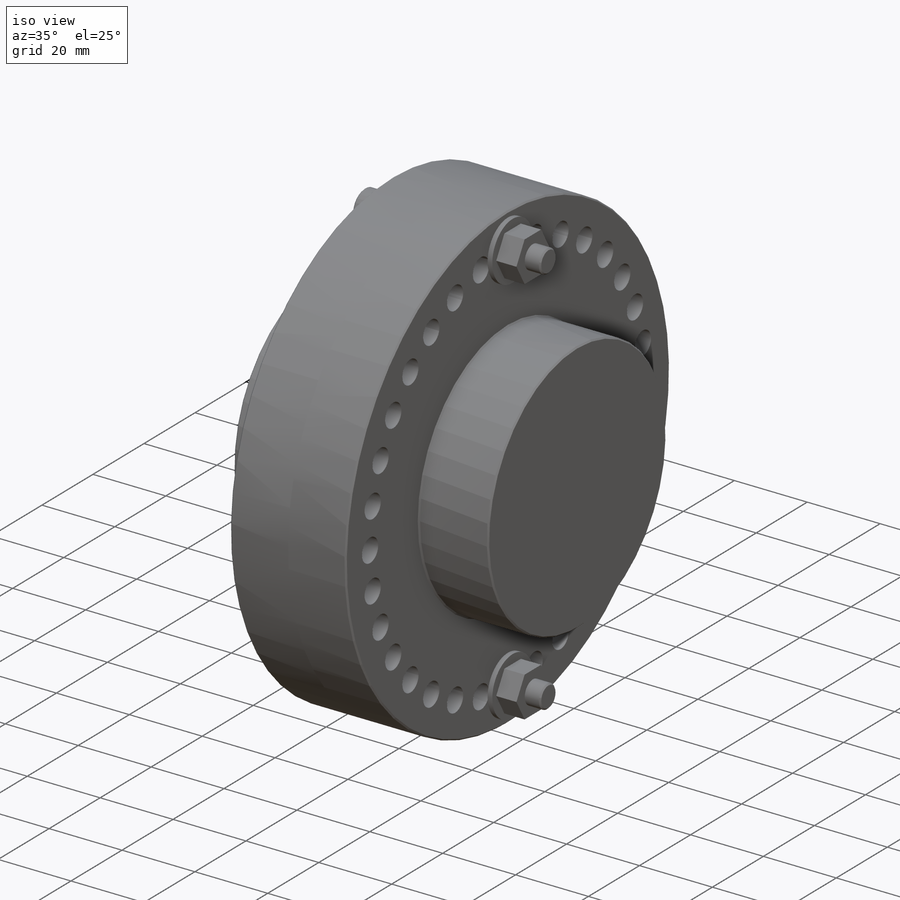
[diagram: iso view]
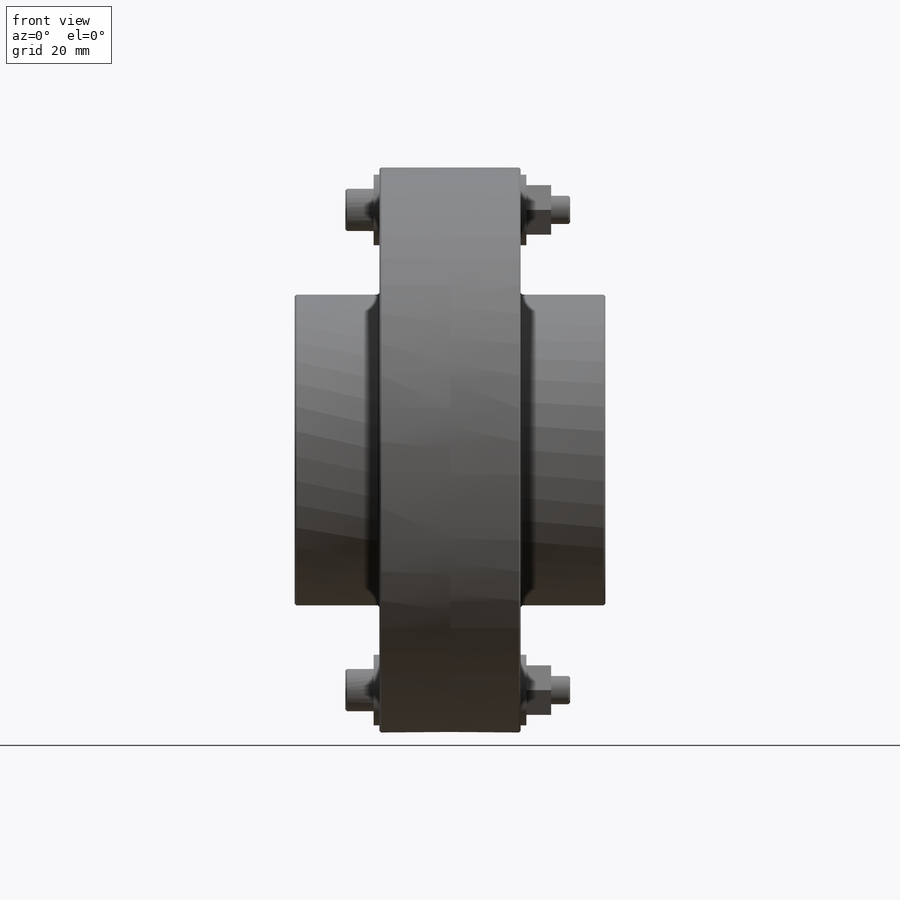
[diagram: front view]
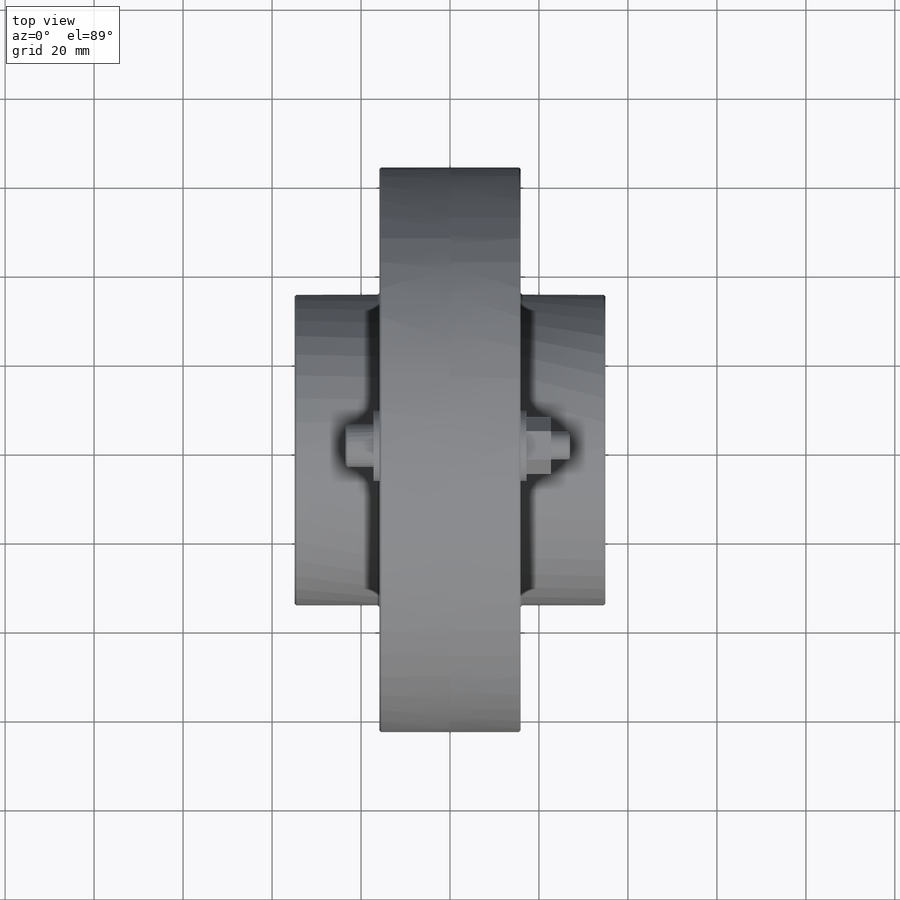
[diagram: top view]
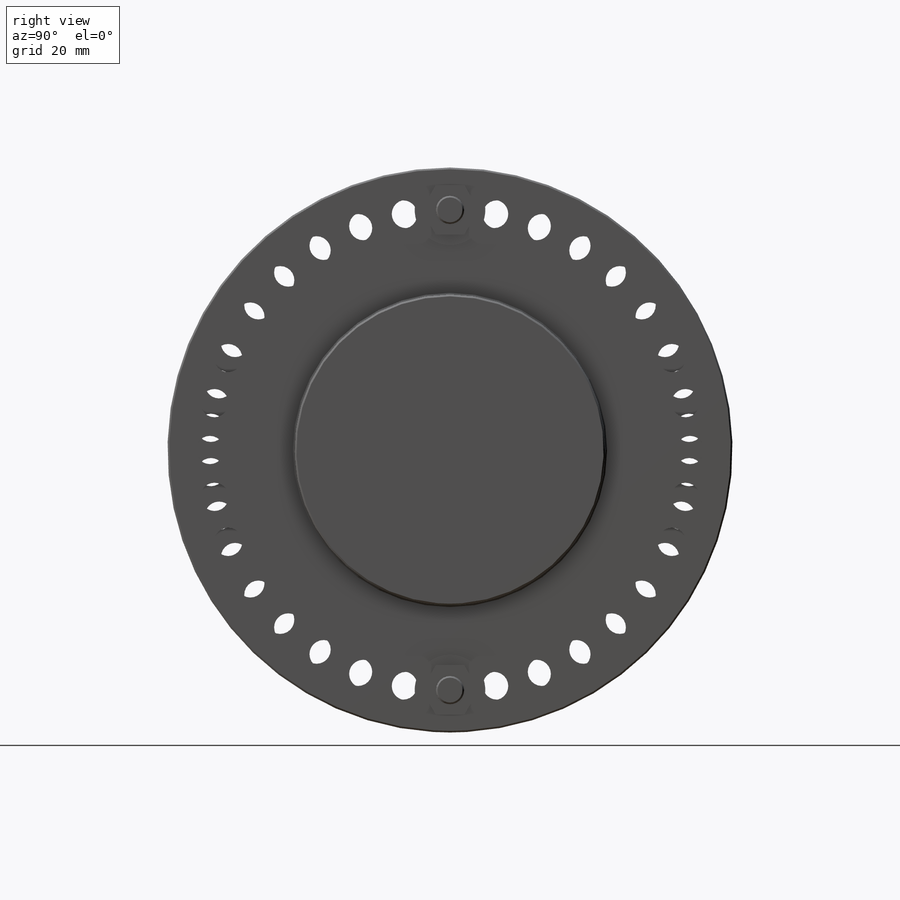
[diagram: right view]
SOLIDWORKS PART (.sldprt)
format: sldprt  version: not decoded by parser v0  size: 563,712 bytes
history: native  units: mm
features: sketch x8, extrude x4, mirror x3, cut_extrude x3, chamfer x2, material x1, revolve x1, plane x1 + 1 further entry (+17 scaffold rows collapsed)
feature tree (41):
  scaffold x17  (default folders/planes/origin — collapsed)
  material  "Material <not specified>"
  "Design Table"
  sketch  "Sketch1"  dims[Dim K=34.925mm Dim A=127.0mm Dim E=15.875mm Dim C=69.85mm]
  revolve  "Revolve1"  Angle=360deg
  chamfer  "Chamfer2"  Distance=0.381mm Angle=45deg
  mirror  "Mirror1"
  sketch  "Sketch2"  dims[Dim H=107.95mm Dim D=6.35mm D1=34.0]
  cut_extrude  "Cut-Extrude1"  [1 undecoded]
  sketch  "Sketch3"  dims[D1=32.0]
  cut_extrude  "Cut-Extrude2"  [1 undecoded]
  sketch  "Sketch4"  dims[Dim Washer OD=15.875mm Dim Washer ID=~7.14375mm]
  extrude  "Boss-Extrude1"  Depth=1.2954mm Dim Washer Thickness=1.2954mm
  mirror  "Mirror2"
  plane  "Plane1"  Offset=7.9248mm Dim G=7.9248mm
  sketch  "Sketch5"  dims[Dim head dia=9.525mm]
  extrude  "Boss-Extrude2"  Depth=6.35mm Dim head depth=6.35mm
  sketch  "Sketch6"  dims[Dim socket hex width=4.7625mm]
  cut_extrude  "Cut-Extrude3"  Depth=4.7625mm dim socket hex depth=4.7625mm
  sketch  "Sketch7"
  extrude  "Boss-Extrude4"  [1 undecoded]
  sketch  "Sketch8"  dims[Dim nut width=11.1125mm]
  extrude  "Boss-Extrude5"  Depth=5.55625mm Dim nut height=5.55625mm
  chamfer  "Chamfer1"  Distance=0.381mm Angle=45deg
  mirror  "Mirror3"
decode coverage: 14 of 21 modeling features carry decoded parameters; 1 rows unclassified (native names shown)
note: ~ marks probable driven/reference dimensions
note: 3 parameter values undecoded
summary: no parameter record found for 3 features
note: suppression state not decoded; provenance and decode notes live in map.json
